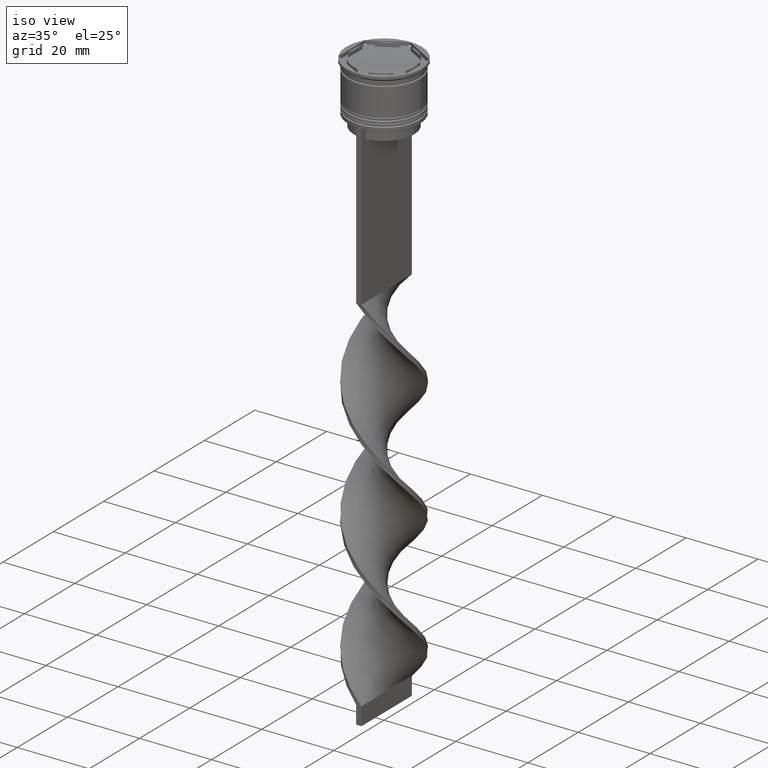
[diagram: clean part render]
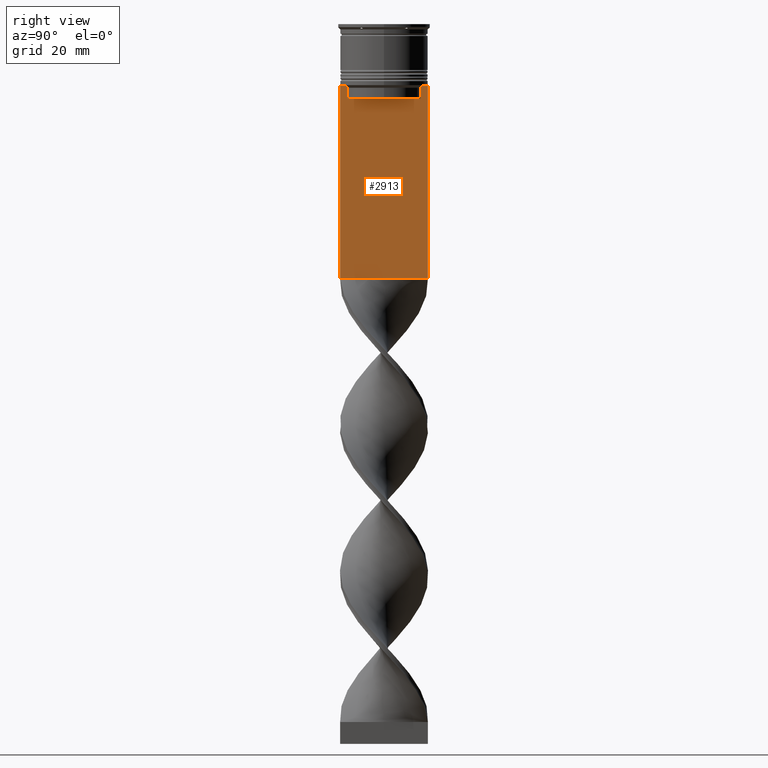
[diagram: tour spotlight — one face highlighted and labeled with its STEP entity id]
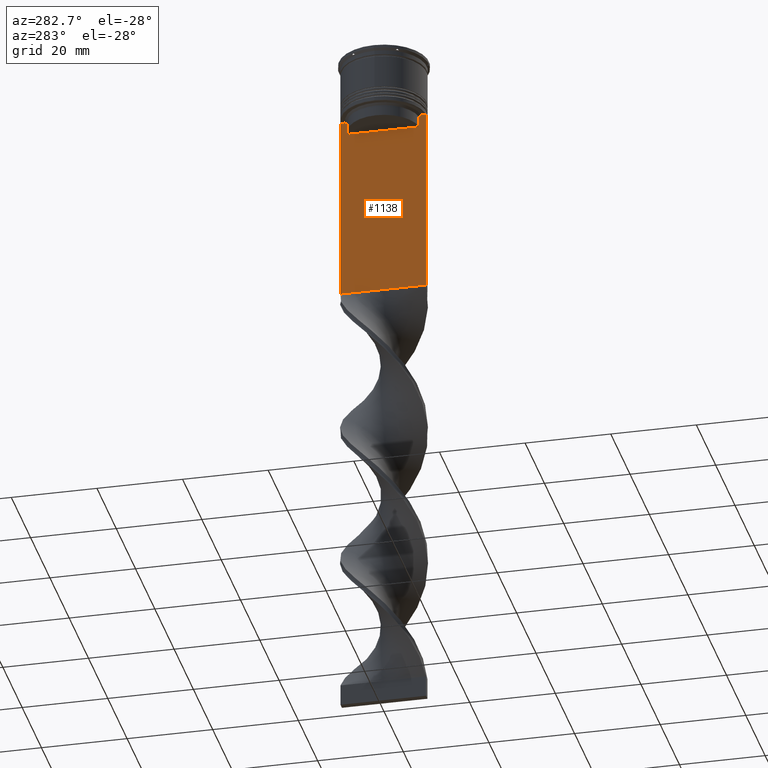
[diagram: tour spotlight — one face highlighted and labeled with its STEP entity id]
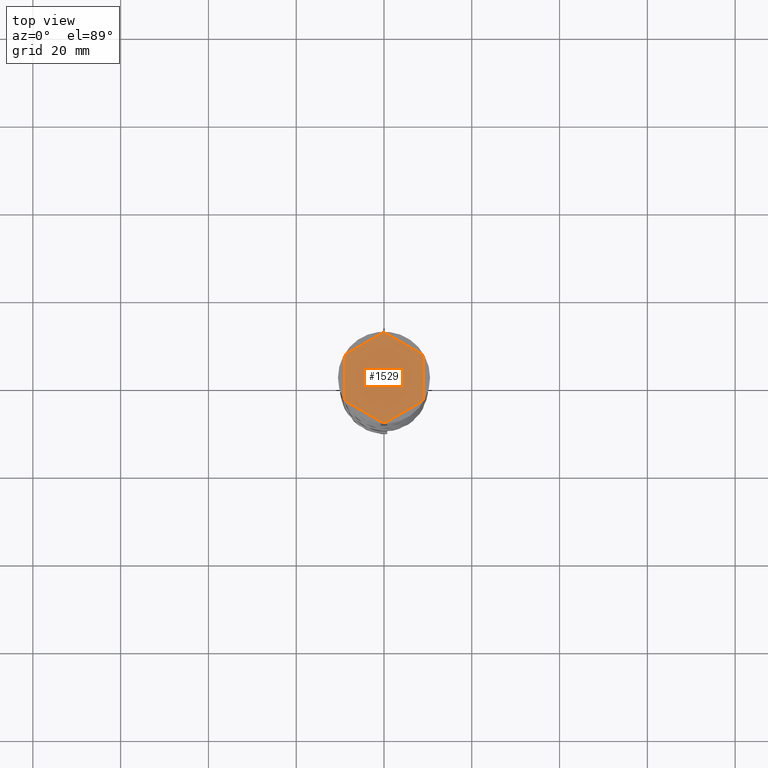
[diagram: tour spotlight — one face highlighted and labeled with its STEP entity id]
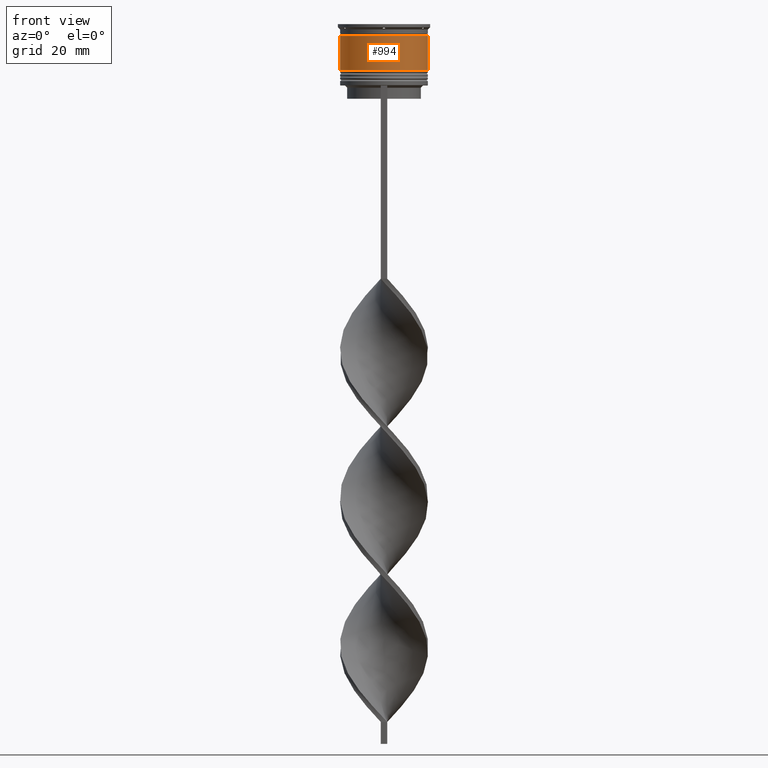
[diagram: tour spotlight — one face highlighted and labeled with its STEP entity id]
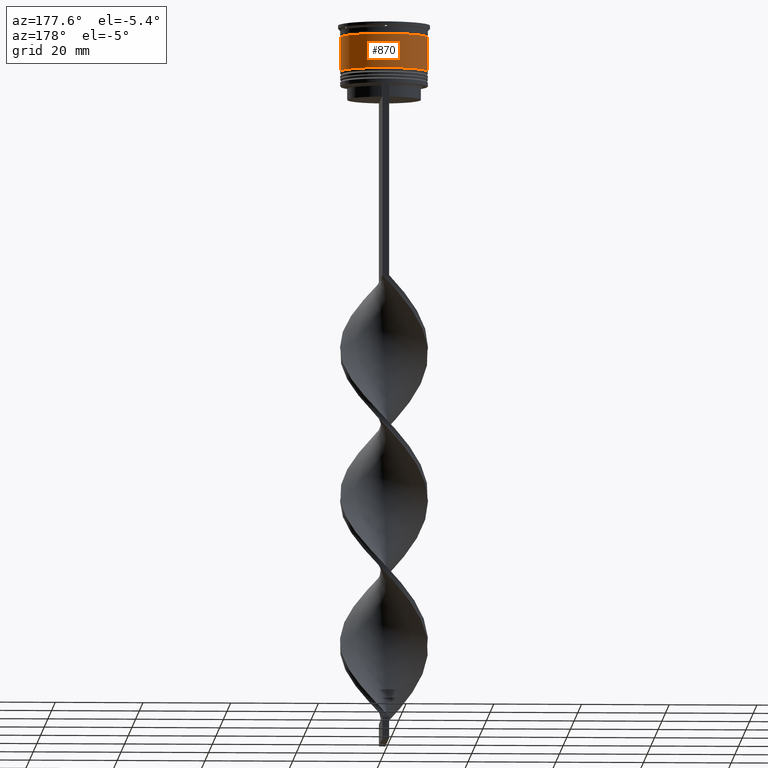
[diagram: tour spotlight — one face highlighted and labeled with its STEP entity id]
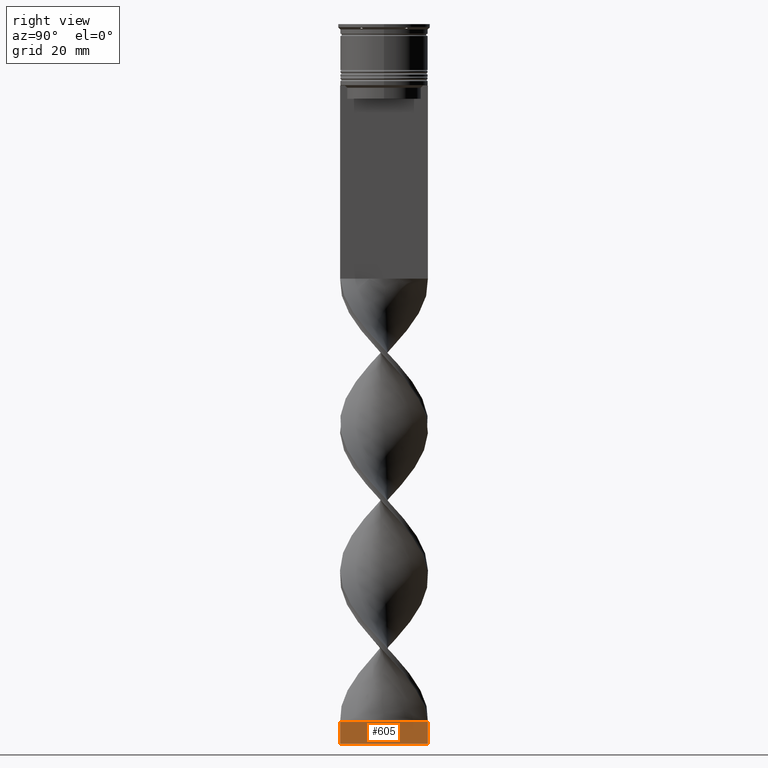
[diagram: tour spotlight — one face highlighted and labeled with its STEP entity id]
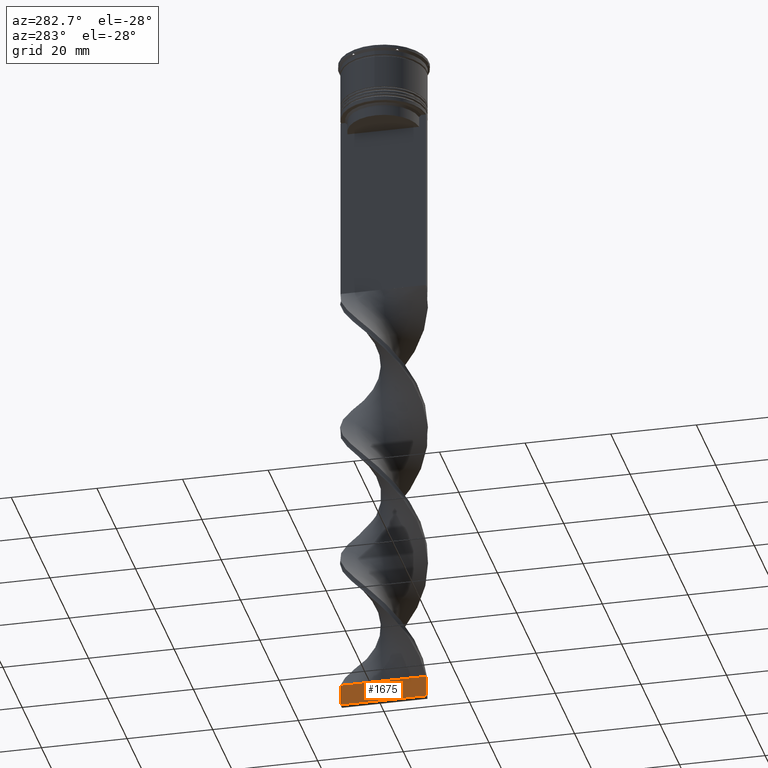
[diagram: tour spotlight — one face highlighted and labeled with its STEP entity id]
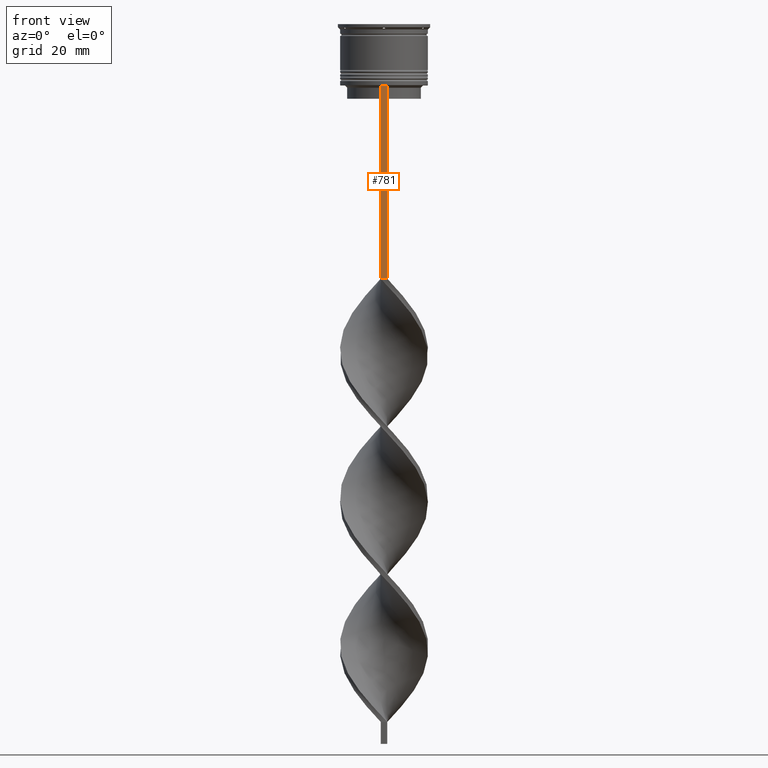
[diagram: tour spotlight — one face highlighted and labeled with its STEP entity id]
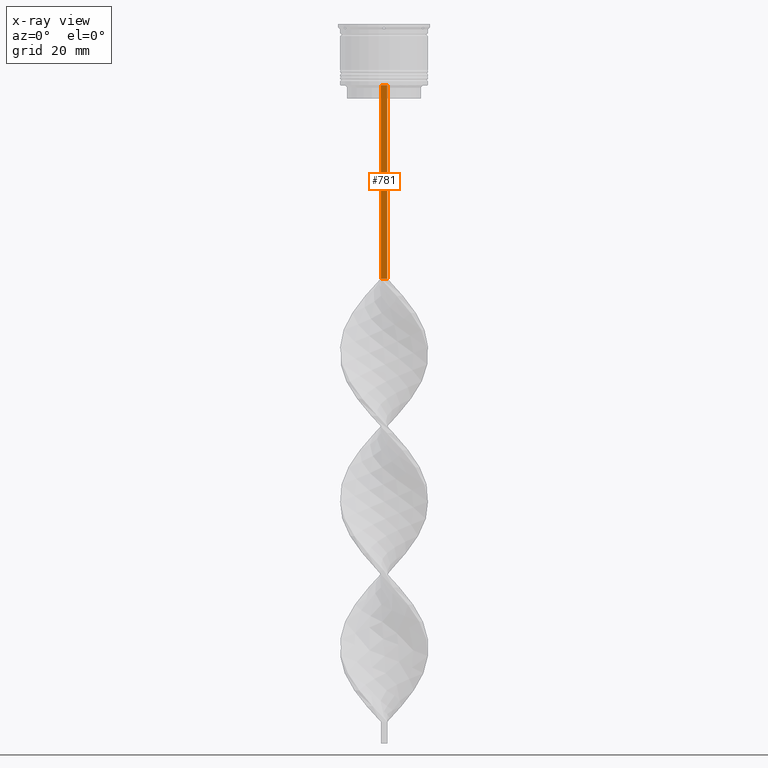
[diagram: x-ray of the same camera — body ghosted, this tour face saturated]
A machine part: a face-by-face anatomy tour. The part has 98 B-rep faces; the first image is the clean iso view, then the 8 largest visible faces are spotlighted one at a time (largest first), each with its STEP entity span.

Face 1 — right view, entity #2913. In plain terms, the highlighted planar face has unit normal (-1, 0, 0).
Definition (entity closure, byte-faithful):
#32 = CARTESIAN_POINT ( 'NONE',  ( 0.7500000000000001110, 9.999999999999998224, -14.00000000000000178 ) ) ;
#63 = CARTESIAN_POINT ( 'NONE',  ( 0.7500000000000001110, -8.366450860430608927, 0.000000000000000000 ) ) ;
#72 = CARTESIAN_POINT ( 'NONE',  ( 0.7500000000000001110, 8.400000000000003908, -17.00000000000000000 ) ) ;
#150 = EDGE_CURVE ( 'NONE', #1999, #1423, #1017, .T. ) ;
#162 = CARTESIAN_POINT ( 'NONE',  ( 0.7500000000000001110, -10.00000000000000533, -14.00000000000000178 ) ) ;
#163 = VERTEX_POINT ( 'NONE', #3101 ) ;
#190 = VECTOR ( 'NONE', #2822, 1000.000000000000000 ) ;
#202 = LINE ( 'NONE', #2617, #2774 ) ;
#221 = LINE ( 'NONE', #162, #3543 ) ;
#229 = ORIENTED_EDGE ( 'NONE', *, *, #723, .T. ) ;
#272 = EDGE_CURVE ( 'NONE', #3506, #1135, #996, .T. ) ;
#345 = LINE ( 'NONE', #72, #3857 ) ;
#364 = LINE ( 'NONE', #2656, #3152 ) ;
#396 = VERTEX_POINT ( 'NONE', #3171 ) ;
#431 = CARTESIAN_POINT ( 'NONE',  ( 0.7500000000000001110, -8.366450860430608927, -17.00000000000000000 ) ) ;
#482 = B_SPLINE_CURVE_WITH_KNOTS ( 'NONE', 3,
 ( #1077, #1393, #2907, #2291 ),
 .UNSPECIFIED., .F., .F.,
 ( 4, 4 ),
 ( 0.03866293624047253963, 0.03937282246709320616 ),
 .UNSPECIFIED. ) ;
#505 = PLANE ( 'NONE',  #1006 ) ;
#507 = VECTOR ( 'NONE', #3511, 1000.000000000000000 ) ;
#538 = VERTEX_POINT ( 'NONE', #431 ) ;
#540 = CARTESIAN_POINT ( 'NONE',  ( 0.7500000000000001110, -10.00000000000000533, 6.056171120131581098 ) ) ;
#564 = VERTEX_POINT ( 'NONE', #3548 ) ;
#582 = EDGE_CURVE ( 'NONE', #1857, #1046, #364, .T. ) ;
#636 = CARTESIAN_POINT ( 'NONE',  ( 0.7500000000000001110, -10.00000000000000533, 6.056171120131581098 ) ) ;
#641 = DIRECTION ( 'NONE',  ( 0.000000000000000000, 1.000000000000000000, 0.000000000000000000 ) ) ;
#696 = CARTESIAN_POINT ( 'NONE',  ( 0.7500000000000001110, -10.00000000000000533, -14.00000000000000178 ) ) ;
#723 = EDGE_CURVE ( 'NONE', #1815, #538, #345, .T. ) ;
#790 = CARTESIAN_POINT ( 'NONE',  ( 0.7500000000000001110, 8.533766897779925031, -14.33335221373273605 ) ) ;
#804 = ORIENTED_EDGE ( 'NONE', *, *, #150, .T. ) ;
#841 = ORIENTED_EDGE ( 'NONE', *, *, #272, .T. ) ;
#873 = VECTOR ( 'NONE', #1610, 1000.000000000000000 ) ;
#996 = LINE ( 'NONE', #696, #873 ) ;
#1000 = EDGE_CURVE ( 'NONE', #396, #163, #482, .T. ) ;
#1006 = AXIS2_PLACEMENT_3D ( 'NONE', #540, #1673, #3498 ) ;
#1017 = LINE ( 'NONE', #1348, #2838 ) ;
#1046 = VERTEX_POINT ( 'NONE', #3577 ) ;
#1050 = CARTESIAN_POINT ( 'NONE',  ( 0.7500000000000001110, 9.999999999999998224, 6.056171120131581098 ) ) ;
#1077 = CARTESIAN_POINT ( 'NONE',  ( 0.7500000000000001110, -8.366450860430608927, -14.50000000000000000 ) ) ;
#1135 = VERTEX_POINT ( 'NONE', #3640 ) ;
#1348 = CARTESIAN_POINT ( 'NONE',  ( 0.7500000000000001110, -10.00000000000000533, -14.00000000000000178 ) ) ;
#1393 = CARTESIAN_POINT ( 'NONE',  ( 0.7500000000000001110, -8.533766903463440912, -14.33335220807192023 ) ) ;
#1423 = VERTEX_POINT ( 'NONE', #2706 ) ;
#1431 = EDGE_CURVE ( 'NONE', #538, #396, #1905, .T. ) ;
#1433 = VECTOR ( 'NONE', #3653, 1000.000000000000000 ) ;
#1553 = DIRECTION ( 'NONE',  ( 0.000000000000000000, -1.000000000000000000, 0.000000000000000000 ) ) ;
#1567 = LINE ( 'NONE', #636, #190 ) ;
#1610 = DIRECTION ( 'NONE',  ( 0.000000000000000000, -1.000000000000000000, 0.000000000000000000 ) ) ;
#1630 = DIRECTION ( 'NONE',  ( 0.000000000000000000, -1.000000000000000000, 0.000000000000000000 ) ) ;
#1673 = DIRECTION ( 'NONE',  ( -1.000000000000000000, 0.000000000000000000, 0.000000000000000000 ) ) ;
#1799 = ORIENTED_EDGE ( 'NONE', *, *, #3569, .F. ) ;
#1815 = VERTEX_POINT ( 'NONE', #3137 ) ;
#1857 = VERTEX_POINT ( 'NONE', #2205 ) ;
#1905 = LINE ( 'NONE', #63, #1433 ) ;
#1973 = B_SPLINE_CURVE_WITH_KNOTS ( 'NONE', 3,
 ( #2922, #2580, #790, #2003 ),
 .UNSPECIFIED., .F., .F.,
 ( 4, 4 ),
 ( 0.01512225952876174867, 0.01583070519299695222 ),
 .UNSPECIFIED. ) ;
#1999 = VERTEX_POINT ( 'NONE', #32 ) ;
#2003 = CARTESIAN_POINT ( 'NONE',  ( 0.7500000000000001110, 8.366450860430608927, -14.50000000000000000 ) ) ;
#2205 = CARTESIAN_POINT ( 'NONE',  ( 0.7500000000000001110, -10.00000000000000533, -58.00000000000000000 ) ) ;
#2226 = ORIENTED_EDGE ( 'NONE', *, *, #3601, .T. ) ;
#2291 = CARTESIAN_POINT ( 'NONE',  ( 0.7500000000000001110, -8.868342573446296839, -14.00000000000000178 ) ) ;
#2319 = VERTEX_POINT ( 'NONE', #2919 ) ;
#2327 = EDGE_CURVE ( 'NONE', #2319, #1815, #202, .T. ) ;
#2330 = DIRECTION ( 'NONE',  ( 0.000000000000000000, -1.000000000000000000, 0.000000000000000000 ) ) ;
#2580 = CARTESIAN_POINT ( 'NONE',  ( 0.7500000000000001110, 8.701063075415250481, -14.16668448247791545 ) ) ;
#2617 = CARTESIAN_POINT ( 'NONE',  ( 0.7500000000000001110, 8.366450860430608927, 0.000000000000000000 ) ) ;
#2620 = CARTESIAN_POINT ( 'NONE',  ( 0.7500000000000001110, -9.871550030263739117, -14.00000000000000178 ) ) ;
#2656 = CARTESIAN_POINT ( 'NONE',  ( 0.7500000000000001110, -10.00000000000000533, -58.00000000000000000 ) ) ;
#2706 = CARTESIAN_POINT ( 'NONE',  ( 0.7500000000000001110, 9.871550030263739117, -14.00000000000000178 ) ) ;
#2734 = EDGE_CURVE ( 'NONE', #1423, #564, #3520, .T. ) ;
#2757 = ORIENTED_EDGE ( 'NONE', *, *, #3643, .T. ) ;
#2774 = VECTOR ( 'NONE', #3491, 1000.000000000000000 ) ;
#2794 = ORIENTED_EDGE ( 'NONE', *, *, #582, .T. ) ;
#2822 = DIRECTION ( 'NONE',  ( 0.000000000000000000, 0.000000000000000000, -1.000000000000000000 ) ) ;
#2838 = VECTOR ( 'NONE', #1630, 1000.000000000000000 ) ;
#2907 = CARTESIAN_POINT ( 'NONE',  ( 0.7500000000000001110, -8.701063080777121428, -14.16668447713511725 ) ) ;
#2913 = ADVANCED_FACE ( 'NONE', ( #3802 ), #505, .F. ) ;
#2919 = CARTESIAN_POINT ( 'NONE',  ( 0.7500000000000001110, 8.366450860430608927, -14.50000000000000000 ) ) ;
#2922 = CARTESIAN_POINT ( 'NONE',  ( 0.7500000000000001110, 8.868342573446296839, -14.00000000000000178 ) ) ;
#2951 = ORIENTED_EDGE ( 'NONE', *, *, #3310, .T. ) ;
#3101 = CARTESIAN_POINT ( 'NONE',  ( 0.7500000000000001110, -8.868342573446296839, -14.00000000000000178 ) ) ;
#3112 = ORIENTED_EDGE ( 'NONE', *, *, #2734, .T. ) ;
#3137 = CARTESIAN_POINT ( 'NONE',  ( 0.7500000000000001110, 8.366450860430608927, -17.00000000000000000 ) ) ;
#3148 = EDGE_LOOP ( 'NONE', ( #3112, #2226, #3779, #229, #3899, #3421, #2757, #841, #2951, #2794, #1799, #804 ) ) ;
#3152 = VECTOR ( 'NONE', #641, 1000.000000000000000 ) ;
#3171 = CARTESIAN_POINT ( 'NONE',  ( 0.7500000000000001110, -8.366450860430608927, -14.50000000000000000 ) ) ;
#3202 = CARTESIAN_POINT ( 'NONE',  ( 0.7500000000000001110, -10.00000000000000533, -14.00000000000000178 ) ) ;
#3310 = EDGE_CURVE ( 'NONE', #1135, #1857, #1567, .T. ) ;
#3421 = ORIENTED_EDGE ( 'NONE', *, *, #1000, .T. ) ;
#3491 = DIRECTION ( 'NONE',  ( 0.000000000000000000, 0.000000000000000000, -1.000000000000000000 ) ) ;
#3494 = LINE ( 'NONE', #1050, #507 ) ;
#3498 = DIRECTION ( 'NONE',  ( 0.000000000000000000, 0.000000000000000000, 1.000000000000000000 ) ) ;
#3506 = VERTEX_POINT ( 'NONE', #2620 ) ;
#3511 = DIRECTION ( 'NONE',  ( 0.000000000000000000, 0.000000000000000000, -1.000000000000000000 ) ) ;
#3520 = LINE ( 'NONE', #3202, #3923 ) ;
#3543 = VECTOR ( 'NONE', #3796, 1000.000000000000000 ) ;
#3548 = CARTESIAN_POINT ( 'NONE',  ( 0.7500000000000001110, 8.868342573446296839, -14.00000000000000178 ) ) ;
#3569 = EDGE_CURVE ( 'NONE', #1999, #1046, #3494, .T. ) ;
#3577 = CARTESIAN_POINT ( 'NONE',  ( 0.7500000000000002220, 9.999999999999998224, -58.00000000000000000 ) ) ;
#3601 = EDGE_CURVE ( 'NONE', #564, #2319, #1973, .T. ) ;
#3640 = CARTESIAN_POINT ( 'NONE',  ( 0.7500000000000001110, -10.00000000000000533, -14.00000000000000178 ) ) ;
#3643 = EDGE_CURVE ( 'NONE', #163, #3506, #221, .T. ) ;
#3653 = DIRECTION ( 'NONE',  ( -0.000000000000000000, -0.000000000000000000, 1.000000000000000000 ) ) ;
#3779 = ORIENTED_EDGE ( 'NONE', *, *, #2327, .T. ) ;
#3796 = DIRECTION ( 'NONE',  ( 0.000000000000000000, -1.000000000000000000, 0.000000000000000000 ) ) ;
#3802 = FACE_OUTER_BOUND ( 'NONE', #3148, .T. ) ;
#3857 = VECTOR ( 'NONE', #1553, 1000.000000000000000 ) ;
#3899 = ORIENTED_EDGE ( 'NONE', *, *, #1431, .T. ) ;
#3923 = VECTOR ( 'NONE', #2330, 1000.000000000000000 ) ;

Face 2 — auxiliary view, entity #1138. In plain terms, the highlighted planar face has unit normal (-1, 0, 0).
Definition (entity closure, byte-faithful):
#60 = VERTEX_POINT ( 'NONE', #613 ) ;
#101 = CARTESIAN_POINT ( 'NONE',  ( -0.7499999999999997780, -8.366450860430608927, -14.50000000000000000 ) ) ;
#118 = VECTOR ( 'NONE', #2211, 1000.000000000000000 ) ;
#131 = ORIENTED_EDGE ( 'NONE', *, *, #1632, .F. ) ;
#222 = EDGE_CURVE ( 'NONE', #3767, #865, #670, .T. ) ;
#243 = EDGE_CURVE ( 'NONE', #60, #3438, #458, .T. ) ;
#247 = CARTESIAN_POINT ( 'NONE',  ( -0.7499999999999997780, 9.999999999999998224, -14.00000000000000178 ) ) ;
#274 = EDGE_CURVE ( 'NONE', #3232, #1939, #1149, .T. ) ;
#290 = CARTESIAN_POINT ( 'NONE',  ( -0.7499999999999997780, 8.868342573446296839, -14.00000000000000178 ) ) ;
#303 = VECTOR ( 'NONE', #1134, 1000.000000000000000 ) ;
#371 = VECTOR ( 'NONE', #3419, 1000.000000000000000 ) ;
#398 = CARTESIAN_POINT ( 'NONE',  ( -0.7499999999999997780, 8.366450860430608927, -14.50000000000000000 ) ) ;
#458 = LINE ( 'NONE', #3162, #118 ) ;
#613 = CARTESIAN_POINT ( 'NONE',  ( -0.7499999999999997780, -9.871550030263740894, -14.00000000000000178 ) ) ;
#618 = CARTESIAN_POINT ( 'NONE',  ( -0.7499999999999997780, -10.00000000000000533, 6.056171120131581098 ) ) ;
#625 = ORIENTED_EDGE ( 'NONE', *, *, #3884, .F. ) ;
#628 = LINE ( 'NONE', #3055, #675 ) ;
#664 = DIRECTION ( 'NONE',  ( 0.000000000000000000, -1.000000000000000000, 0.000000000000000000 ) ) ;
#670 = LINE ( 'NONE', #2845, #2649 ) ;
#675 = VECTOR ( 'NONE', #664, 1000.000000000000000 ) ;
#711 = CARTESIAN_POINT ( 'NONE',  ( -0.7499999999999997780, -10.00000000000000533, -14.00000000000000178 ) ) ;
#838 = LINE ( 'NONE', #1056, #303 ) ;
#840 = CARTESIAN_POINT ( 'NONE',  ( -0.7499999999999997780, -8.366450860430608927, 0.000000000000000000 ) ) ;
#865 = VERTEX_POINT ( 'NONE', #2810 ) ;
#878 = EDGE_CURVE ( 'NONE', #1073, #3767, #3442, .T. ) ;
#1016 = LINE ( 'NONE', #3700, #371 ) ;
#1056 = CARTESIAN_POINT ( 'NONE',  ( -0.7499999999999997780, -10.00000000000000533, 6.056171120131581098 ) ) ;
#1073 = VERTEX_POINT ( 'NONE', #247 ) ;
#1134 = DIRECTION ( 'NONE',  ( 0.000000000000000000, 0.000000000000000000, -1.000000000000000000 ) ) ;
#1138 = ADVANCED_FACE ( 'NONE', ( #1489 ), #3303, .T. ) ;
#1149 = B_SPLINE_CURVE_WITH_KNOTS ( 'NONE', 3,
 ( #101, #1308, #2250, #3456 ),
 .UNSPECIFIED., .F., .F.,
 ( 4, 4 ),
 ( 0.03866293624047253963, 0.03937282246709321309 ),
 .UNSPECIFIED. ) ;
#1201 = CARTESIAN_POINT ( 'NONE',  ( -0.7499999999999997780, 8.366450860430608927, -14.50000000000000000 ) ) ;
#1258 = ORIENTED_EDGE ( 'NONE', *, *, #3402, .F. ) ;
#1284 = ORIENTED_EDGE ( 'NONE', *, *, #2770, .F. ) ;
#1303 = AXIS2_PLACEMENT_3D ( 'NONE', #618, #1809, #1849 ) ;
#1308 = CARTESIAN_POINT ( 'NONE',  ( -0.7499999999999997780, -8.533766903463440912, -14.33335220807192201 ) ) ;
#1489 = FACE_OUTER_BOUND ( 'NONE', #3386, .T. ) ;
#1504 = VERTEX_POINT ( 'NONE', #398 ) ;
#1537 = LINE ( 'NONE', #2056, #2011 ) ;
#1592 = B_SPLINE_CURVE_WITH_KNOTS ( 'NONE', 3,
 ( #290, #2717, #3926, #1201 ),
 .UNSPECIFIED., .F., .F.,
 ( 4, 4 ),
 ( 0.01512225952876174867, 0.01583070519299695222 ),
 .UNSPECIFIED. ) ;
#1632 = EDGE_CURVE ( 'NONE', #1939, #60, #628, .T. ) ;
#1640 = VECTOR ( 'NONE', #3486, 1000.000000000000000 ) ;
#1711 = ORIENTED_EDGE ( 'NONE', *, *, #2016, .F. ) ;
#1769 = CARTESIAN_POINT ( 'NONE',  ( -0.7499999999999997780, -8.366450860430608927, -14.50000000000000000 ) ) ;
#1809 = DIRECTION ( 'NONE',  ( -1.000000000000000000, 0.000000000000000000, 0.000000000000000000 ) ) ;
#1849 = DIRECTION ( 'NONE',  ( 0.000000000000000000, 0.000000000000000000, 1.000000000000000000 ) ) ;
#1939 = VERTEX_POINT ( 'NONE', #2538 ) ;
#1957 = VECTOR ( 'NONE', #2642, 1000.000000000000000 ) ;
#1975 = DIRECTION ( 'NONE',  ( 0.000000000000000000, -1.000000000000000000, 0.000000000000000000 ) ) ;
#1982 = VERTEX_POINT ( 'NONE', #2464 ) ;
#2011 = VECTOR ( 'NONE', #2268, 1000.000000000000000 ) ;
#2016 = EDGE_CURVE ( 'NONE', #2807, #1982, #1537, .T. ) ;
#2053 = ORIENTED_EDGE ( 'NONE', *, *, #222, .F. ) ;
#2056 = CARTESIAN_POINT ( 'NONE',  ( -0.7499999999999997780, -10.00000000000000533, -58.00000000000000000 ) ) ;
#2133 = CARTESIAN_POINT ( 'NONE',  ( -0.7499999999999998890, -10.00000000000000533, -58.00000000000000000 ) ) ;
#2147 = VECTOR ( 'NONE', #3262, 1000.000000000000000 ) ;
#2211 = DIRECTION ( 'NONE',  ( 0.000000000000000000, -1.000000000000000000, 0.000000000000000000 ) ) ;
#2217 = CARTESIAN_POINT ( 'NONE',  ( -0.7499999999999997780, -10.00000000000000533, -14.00000000000000178 ) ) ;
#2250 = CARTESIAN_POINT ( 'NONE',  ( -0.7499999999999997780, -8.701063080777123204, -14.16668447713511547 ) ) ;
#2255 = EDGE_CURVE ( 'NONE', #3438, #2807, #838, .T. ) ;
#2268 = DIRECTION ( 'NONE',  ( 0.000000000000000000, 1.000000000000000000, 0.000000000000000000 ) ) ;
#2293 = ORIENTED_EDGE ( 'NONE', *, *, #3058, .T. ) ;
#2352 = LINE ( 'NONE', #840, #2147 ) ;
#2464 = CARTESIAN_POINT ( 'NONE',  ( -0.7499999999999997780, 9.999999999999998224, -58.00000000000000000 ) ) ;
#2538 = CARTESIAN_POINT ( 'NONE',  ( -0.7499999999999997780, -8.868342573446296839, -14.00000000000000178 ) ) ;
#2611 = CARTESIAN_POINT ( 'NONE',  ( -0.7499999999999997780, 8.366450860430608927, 0.000000000000000000 ) ) ;
#2642 = DIRECTION ( 'NONE',  ( 0.000000000000000000, 0.000000000000000000, -1.000000000000000000 ) ) ;
#2649 = VECTOR ( 'NONE', #2823, 1000.000000000000000 ) ;
#2683 = ORIENTED_EDGE ( 'NONE', *, *, #878, .F. ) ;
#2697 = VERTEX_POINT ( 'NONE', #2862 ) ;
#2717 = CARTESIAN_POINT ( 'NONE',  ( -0.7499999999999997780, 8.701063075415252257, -14.16668448247791723 ) ) ;
#2744 = EDGE_CURVE ( 'NONE', #1504, #3636, #3542, .T. ) ;
#2770 = EDGE_CURVE ( 'NONE', #2697, #3232, #2352, .T. ) ;
#2807 = VERTEX_POINT ( 'NONE', #2133 ) ;
#2810 = CARTESIAN_POINT ( 'NONE',  ( -0.7499999999999997780, 8.868342573446296839, -14.00000000000000178 ) ) ;
#2823 = DIRECTION ( 'NONE',  ( 0.000000000000000000, -1.000000000000000000, 0.000000000000000000 ) ) ;
#2845 = CARTESIAN_POINT ( 'NONE',  ( -0.7499999999999997780, -10.00000000000000533, -14.00000000000000178 ) ) ;
#2862 = CARTESIAN_POINT ( 'NONE',  ( -0.7499999999999997780, -8.366450860430608927, -17.00000000000000000 ) ) ;
#2942 = LINE ( 'NONE', #3538, #1957 ) ;
#2945 = ORIENTED_EDGE ( 'NONE', *, *, #243, .F. ) ;
#3034 = ORIENTED_EDGE ( 'NONE', *, *, #2255, .F. ) ;
#3055 = CARTESIAN_POINT ( 'NONE',  ( -0.7499999999999997780, -10.00000000000000533, -14.00000000000000178 ) ) ;
#3058 = EDGE_CURVE ( 'NONE', #1073, #1982, #2942, .T. ) ;
#3162 = CARTESIAN_POINT ( 'NONE',  ( -0.7499999999999997780, -10.00000000000000533, -14.00000000000000178 ) ) ;
#3177 = CARTESIAN_POINT ( 'NONE',  ( -0.7499999999999997780, 8.366450860430608927, -17.00000000000000000 ) ) ;
#3232 = VERTEX_POINT ( 'NONE', #1769 ) ;
#3262 = DIRECTION ( 'NONE',  ( -0.000000000000000000, -0.000000000000000000, 1.000000000000000000 ) ) ;
#3303 = PLANE ( 'NONE',  #1303 ) ;
#3343 = VECTOR ( 'NONE', #1975, 1000.000000000000000 ) ;
#3356 = ORIENTED_EDGE ( 'NONE', *, *, #274, .F. ) ;
#3386 = EDGE_LOOP ( 'NONE', ( #625, #2053, #2683, #2293, #1711, #3034, #2945, #131, #3356, #1284, #1258, #3541 ) ) ;
#3402 = EDGE_CURVE ( 'NONE', #3636, #2697, #1016, .T. ) ;
#3419 = DIRECTION ( 'NONE',  ( 0.000000000000000000, -1.000000000000000000, 0.000000000000000000 ) ) ;
#3438 = VERTEX_POINT ( 'NONE', #711 ) ;
#3442 = LINE ( 'NONE', #2217, #3343 ) ;
#3456 = CARTESIAN_POINT ( 'NONE',  ( -0.7499999999999997780, -8.868342573446296839, -14.00000000000000178 ) ) ;
#3486 = DIRECTION ( 'NONE',  ( 0.000000000000000000, 0.000000000000000000, -1.000000000000000000 ) ) ;
#3538 = CARTESIAN_POINT ( 'NONE',  ( -0.7499999999999997780, 9.999999999999998224, 6.056171120131581098 ) ) ;
#3541 = ORIENTED_EDGE ( 'NONE', *, *, #2744, .F. ) ;
#3542 = LINE ( 'NONE', #2611, #1640 ) ;
#3636 = VERTEX_POINT ( 'NONE', #3177 ) ;
#3700 = CARTESIAN_POINT ( 'NONE',  ( -0.7499999999999997780, 8.400000000000003908, -17.00000000000000000 ) ) ;
#3767 = VERTEX_POINT ( 'NONE', #3885 ) ;
#3884 = EDGE_CURVE ( 'NONE', #865, #1504, #1592, .T. ) ;
#3885 = CARTESIAN_POINT ( 'NONE',  ( -0.7499999999999997780, 9.871550030263740894, -14.00000000000000178 ) ) ;
#3926 = CARTESIAN_POINT ( 'NONE',  ( -0.7499999999999997780, 8.533766897779926808, -14.33335221373273782 ) ) ;

Face 3 — top view, entity #1529. In plain terms, the highlighted planar face has unit normal (0, 0, 1).
Definition (entity closure, byte-faithful):
#4 = CARTESIAN_POINT ( 'NONE',  ( -9.000000000000001776, 4.799999999999988276, -1.000000000000000000 ) ) ;
#5 = EDGE_CURVE ( 'NONE', #656, #3254, #1584, .T. ) ;
#19 = DIRECTION ( 'NONE',  ( 1.000000000000000000, 0.000000000000000000, 0.000000000000000000 ) ) ;
#23 = ORIENTED_EDGE ( 'NONE', *, *, #1453, .F. ) ;
#67 = DIRECTION ( 'NONE',  ( -0.000000000000000000, -0.000000000000000000, -1.000000000000000000 ) ) ;
#99 = FACE_BOUND ( 'NONE', #365, .T. ) ;
#114 = VECTOR ( 'NONE', #2926, 1000.000000000000000 ) ;
#142 = DIRECTION ( 'NONE',  ( 1.000000000000000000, 8.881784197001252323E-16, 0.000000000000000000 ) ) ;
#156 = ORIENTED_EDGE ( 'NONE', *, *, #3646, .T. ) ;
#167 = LINE ( 'NONE', #1351, #556 ) ;
#174 = AXIS2_PLACEMENT_3D ( 'NONE', #1574, #1594, #3365 ) ;
#207 = EDGE_CURVE ( 'NONE', #3200, #768, #2329, .T. ) ;
#223 = VERTEX_POINT ( 'NONE', #3399 ) ;
#248 = LINE ( 'NONE', #1715, #114 ) ;
#249 = VERTEX_POINT ( 'NONE', #2266 ) ;
#281 = ORIENTED_EDGE ( 'NONE', *, *, #207, .F. ) ;
#297 = CARTESIAN_POINT ( 'NONE',  ( -8.673617379884035472E-16, -9.237604307034013473, -1.000000000000000888 ) ) ;
#298 = VERTEX_POINT ( 'NONE', #3799 ) ;
#312 = ORIENTED_EDGE ( 'NONE', *, *, #1796, .F. ) ;
#359 = VECTOR ( 'NONE', #3821, 1000.000000000000000 ) ;
#365 = EDGE_LOOP ( 'NONE', ( #1772, #2535 ) ) ;
#376 = EDGE_LOOP ( 'NONE', ( #3554, #1277 ) ) ;
#388 = LINE ( 'NONE', #2272, #2712 ) ;
#389 = ORIENTED_EDGE ( 'NONE', *, *, #3124, .T. ) ;
#420 = AXIS2_PLACEMENT_3D ( 'NONE', #2008, #2072, #506 ) ;
#422 = VERTEX_POINT ( 'NONE', #3766 ) ;
#428 = CIRCLE ( 'NONE', #3159, 8.500000000000000000 ) ;
#437 = AXIS2_PLACEMENT_3D ( 'NONE', #2102, #1159, #2397 ) ;
#465 = EDGE_CURVE ( 'NONE', #3254, #656, #2270, .T. ) ;
#479 = CARTESIAN_POINT ( 'NONE',  ( 8.000000000000000000, 2.872281323269014752, -1.000000000000000888 ) ) ;
#501 = CIRCLE ( 'NONE', #3536, 10.19999999999999574 ) ;
#506 = DIRECTION ( 'NONE',  ( 1.000000000000000000, 0.000000000000000000, 0.000000000000000000 ) ) ;
#525 = LINE ( 'NONE', #2006, #1445 ) ;
#556 = VECTOR ( 'NONE', #1315, 1000.000000000000114 ) ;
#656 = VERTEX_POINT ( 'NONE', #3385 ) ;
#671 = VERTEX_POINT ( 'NONE', #3705 ) ;
#694 = CARTESIAN_POINT ( 'NONE',  ( 8.000000000000000000, -2.872281323269017417, -1.000000000000000888 ) ) ;
#727 = VERTEX_POINT ( 'NONE', #2677 ) ;
#768 = VERTEX_POINT ( 'NONE', #3777 ) ;
#773 = CARTESIAN_POINT ( 'NONE',  ( 9.000000000000001776, 5.196152422706632912, -1.000000000000000000 ) ) ;
#776 = EDGE_CURVE ( 'NONE', #3600, #223, #167, .T. ) ;
#803 = DIRECTION ( 'NONE',  ( 1.000000000000000000, 0.000000000000000000, 0.000000000000000000 ) ) ;
#813 = VERTEX_POINT ( 'NONE', #2546 ) ;
#823 = EDGE_LOOP ( 'NONE', ( #1194, #3887 ) ) ;
#846 = EDGE_CURVE ( 'NONE', #422, #813, #388, .T. ) ;
#881 = AXIS2_PLACEMENT_3D ( 'NONE', #1306, #3737, #3756 ) ;
#896 = DIRECTION ( 'NONE',  ( 1.000000000000000000, 0.000000000000000000, 0.000000000000000000 ) ) ;
#897 = CARTESIAN_POINT ( 'NONE',  ( -0.3430780618347059052, 10.19422863405994306, -1.000000000000000000 ) ) ;
#950 = EDGE_CURVE ( 'NONE', #990, #1497, #3500, .T. ) ;
#958 = FACE_OUTER_BOUND ( 'NONE', #1018, .T. ) ;
#990 = VERTEX_POINT ( 'NONE', #479 ) ;
#995 = CARTESIAN_POINT ( 'NONE',  ( 0.000000000000000000, 0.000000000000000000, -1.000000000000000000 ) ) ;
#998 = AXIS2_PLACEMENT_3D ( 'NONE', #2760, #3713, #19 ) ;
#1001 = CARTESIAN_POINT ( 'NONE',  ( 8.656921938165297092, -5.394228634059953009, -1.000000000000000000 ) ) ;
#1004 = VERTEX_POINT ( 'NONE', #1714 ) ;
#1007 = VECTOR ( 'NONE', #1512, 1000.000000000000000 ) ;
#1015 = DIRECTION ( 'NONE',  ( 0.000000000000000000, 0.000000000000000000, 1.000000000000000000 ) ) ;
#1018 = EDGE_LOOP ( 'NONE', ( #1115, #23, #156, #2824, #3811, #281, #1270, #3044, #2022, #3427, #389, #1616 ) ) ;
#1023 = DIRECTION ( 'NONE',  ( 0.8660254037844387076, -0.4999999999999997224, 0.000000000000000000 ) ) ;
#1035 = CARTESIAN_POINT ( 'NONE',  ( 8.656921938165297092, 5.394228634059953897, -1.000000000000000000 ) ) ;
#1041 = EDGE_CURVE ( 'NONE', #1497, #990, #2653, .T. ) ;
#1054 = CIRCLE ( 'NONE', #2575, 10.19999999999999574 ) ;
#1067 = EDGE_CURVE ( 'NONE', #1977, #249, #2450, .T. ) ;
#1072 = LINE ( 'NONE', #773, #1129 ) ;
#1115 = ORIENTED_EDGE ( 'NONE', *, *, #2214, .T. ) ;
#1129 = VECTOR ( 'NONE', #1687, 1000.000000000000227 ) ;
#1159 = DIRECTION ( 'NONE',  ( -0.000000000000000000, -0.000000000000000000, -1.000000000000000000 ) ) ;
#1170 = LINE ( 'NONE', #2365, #1007 ) ;
#1194 = ORIENTED_EDGE ( 'NONE', *, *, #1067, .F. ) ;
#1195 = EDGE_CURVE ( 'NONE', #422, #2097, #1054, .T. ) ;
#1196 = CIRCLE ( 'NONE', #881, 8.500000000000000000 ) ;
#1200 = VERTEX_POINT ( 'NONE', #897 ) ;
#1234 = VERTEX_POINT ( 'NONE', #3064 ) ;
#1244 = CIRCLE ( 'NONE', #174, 8.500000000000000000 ) ;
#1245 = VECTOR ( 'NONE', #2166, 1000.000000000000114 ) ;
#1246 = CARTESIAN_POINT ( 'NONE',  ( 6.487468592766552078, 5.492062568641001619, -1.000000000000000888 ) ) ;
#1256 = CARTESIAN_POINT ( 'NONE',  ( 0.000000000000000000, 0.000000000000000000, -1.000000000000000000 ) ) ;
#1268 = FACE_BOUND ( 'NONE', #3070, .T. ) ;
#1270 = ORIENTED_EDGE ( 'NONE', *, *, #3021, .T. ) ;
#1274 = CARTESIAN_POINT ( 'NONE',  ( -8.000000000000000000, 2.872281323269016085, -1.000000000000000888 ) ) ;
#1275 = DIRECTION ( 'NONE',  ( 0.000000000000000000, 0.000000000000000000, 1.000000000000000000 ) ) ;
#1277 = ORIENTED_EDGE ( 'NONE', *, *, #2503, .F. ) ;
#1306 = CARTESIAN_POINT ( 'NONE',  ( 0.000000000000000000, 0.000000000000000000, -1.000000000000000000 ) ) ;
#1315 = DIRECTION ( 'NONE',  ( 0.8660254037844384856, 0.5000000000000003331, -0.000000000000000000 ) ) ;
#1321 = VECTOR ( 'NONE', #2694, 1000.000000000000114 ) ;
#1324 = CIRCLE ( 'NONE', #437, 10.19999999999999574 ) ;
#1335 = ORIENTED_EDGE ( 'NONE', *, *, #950, .F. ) ;
#1345 = CARTESIAN_POINT ( 'NONE',  ( -1.512531407233448366, -8.364343891910017703, -1.000000000000000888 ) ) ;
#1351 = CARTESIAN_POINT ( 'NONE',  ( 8.673617379884035472E-16, 9.237604307034013473, -1.000000000000000888 ) ) ;
#1426 = DIRECTION ( 'NONE',  ( 0.000000000000000000, -1.000000000000000000, 0.000000000000000000 ) ) ;
#1440 = AXIS2_PLACEMENT_3D ( 'NONE', #2306, #2925, #1450 ) ;
#1445 = VECTOR ( 'NONE', #1426, 1000.000000000000000 ) ;
#1450 = DIRECTION ( 'NONE',  ( 1.000000000000000000, 0.000000000000000000, 0.000000000000000000 ) ) ;
#1453 = EDGE_CURVE ( 'NONE', #3392, #298, #3344, .T. ) ;
#1477 = CARTESIAN_POINT ( 'NONE',  ( 8.000000000000000000, 4.618802153517006737, -1.000000000000000888 ) ) ;
#1496 = AXIS2_PLACEMENT_3D ( 'NONE', #3396, #1015, #2785 ) ;
#1497 = VERTEX_POINT ( 'NONE', #694 ) ;
#1512 = DIRECTION ( 'NONE',  ( 0.8660254037844385966, 0.5000000000000001110, 0.000000000000000000 ) ) ;
#1529 = ADVANCED_FACE ( 'NONE', ( #3699, #1268, #1607, #3133, #3682, #99, #958 ), #3736, .T. ) ;
#1570 = ORIENTED_EDGE ( 'NONE', *, *, #3397, .F. ) ;
#1574 = CARTESIAN_POINT ( 'NONE',  ( 0.000000000000000000, 0.000000000000000000, -1.000000000000000000 ) ) ;
#1584 = LINE ( 'NONE', #297, #1245 ) ;
#1587 = LINE ( 'NONE', #3115, #3222 ) ;
#1594 = DIRECTION ( 'NONE',  ( 0.000000000000000000, 0.000000000000000000, 1.000000000000000000 ) ) ;
#1607 = FACE_BOUND ( 'NONE', #3679, .T. ) ;
#1616 = ORIENTED_EDGE ( 'NONE', *, *, #2676, .F. ) ;
#1687 = DIRECTION ( 'NONE',  ( -0.8660254037844385966, 0.5000000000000000000, 0.000000000000000000 ) ) ;
#1714 = CARTESIAN_POINT ( 'NONE',  ( 0.3430780618347050170, 10.19422863405994306, -1.000000000000000000 ) ) ;
#1715 = CARTESIAN_POINT ( 'NONE',  ( 9.000000000000001776, -5.196152422706632024, -1.000000000000000000 ) ) ;
#1752 = VERTEX_POINT ( 'NONE', #1274 ) ;
#1772 = ORIENTED_EDGE ( 'NONE', *, *, #3203, .F. ) ;
#1796 = EDGE_CURVE ( 'NONE', #1234, #3477, #1244, .T. ) ;
#1867 = DIRECTION ( 'NONE',  ( -0.000000000000000000, -0.000000000000000000, -1.000000000000000000 ) ) ;
#1924 = DIRECTION ( 'NONE',  ( 1.000000000000000000, 0.000000000000000000, 0.000000000000000000 ) ) ;
#1926 = CARTESIAN_POINT ( 'NONE',  ( 9.000000000000001776, -4.799999999999988276, -1.000000000000000000 ) ) ;
#1971 = CARTESIAN_POINT ( 'NONE',  ( -9.000000000000001776, -4.799999999999988276, -1.000000000000000000 ) ) ;
#1977 = VERTEX_POINT ( 'NONE', #1246 ) ;
#1992 = CARTESIAN_POINT ( 'NONE',  ( 7.999999999999998224, -4.618802153517008513, -1.000000000000000888 ) ) ;
#2006 = CARTESIAN_POINT ( 'NONE',  ( -9.000000000000001776, 5.196152422706632024, -1.000000000000000000 ) ) ;
#2008 = CARTESIAN_POINT ( 'NONE',  ( 0.000000000000000000, 0.000000000000000000, -1.000000000000000000 ) ) ;
#2022 = ORIENTED_EDGE ( 'NONE', *, *, #846, .T. ) ;
#2030 = ORIENTED_EDGE ( 'NONE', *, *, #2892, .F. ) ;
#2039 = DIRECTION ( 'NONE',  ( 0.000000000000000000, 0.000000000000000000, 1.000000000000000000 ) ) ;
#2071 = DIRECTION ( 'NONE',  ( 0.000000000000000000, 0.000000000000000000, 1.000000000000000000 ) ) ;
#2072 = DIRECTION ( 'NONE',  ( 0.000000000000000000, 0.000000000000000000, 1.000000000000000000 ) ) ;
#2089 = VECTOR ( 'NONE', #3378, 1000.000000000000000 ) ;
#2097 = VERTEX_POINT ( 'NONE', #1971 ) ;
#2102 = CARTESIAN_POINT ( 'NONE',  ( 0.000000000000000000, 0.000000000000000000, -1.000000000000000000 ) ) ;
#2130 = CARTESIAN_POINT ( 'NONE',  ( 0.000000000000000000, 0.000000000000000000, -1.000000000000000000 ) ) ;
#2166 = DIRECTION ( 'NONE',  ( -0.8660254037844387076, -0.4999999999999998335, 0.000000000000000000 ) ) ;
#2170 = CARTESIAN_POINT ( 'NONE',  ( -8.000000000000000000, 4.618802153517004072, -1.000000000000000888 ) ) ;
#2189 = CARTESIAN_POINT ( 'NONE',  ( 0.000000000000000000, 0.000000000000000000, -1.000000000000000000 ) ) ;
#2214 = EDGE_CURVE ( 'NONE', #2530, #298, #248, .T. ) ;
#2229 = DIRECTION ( 'NONE',  ( -0.8660254037844385966, -0.5000000000000001110, 0.000000000000000000 ) ) ;
#2266 = CARTESIAN_POINT ( 'NONE',  ( 1.512531407233448366, 8.364343891910017703, -1.000000000000000888 ) ) ;
#2270 = CIRCLE ( 'NONE', #2844, 8.500000000000000000 ) ;
#2272 = CARTESIAN_POINT ( 'NONE',  ( -9.000000000000001776, -5.196152422706632912, -1.000000000000000000 ) ) ;
#2280 = CARTESIAN_POINT ( 'NONE',  ( 0.000000000000000000, 0.000000000000000000, -1.000000000000000000 ) ) ;
#2306 = CARTESIAN_POINT ( 'NONE',  ( 0.000000000000000000, 0.000000000000000000, -1.000000000000000000 ) ) ;
#2329 = CIRCLE ( 'NONE', #2333, 10.19999999999999574 ) ;
#2333 = AXIS2_PLACEMENT_3D ( 'NONE', #2189, #67, #1924 ) ;
#2335 = AXIS2_PLACEMENT_3D ( 'NONE', #2745, #2071, #896 ) ;
#2365 = CARTESIAN_POINT ( 'NONE',  ( 2.607697573705103160E-15, -10.39230484541326405, -1.000000000000000000 ) ) ;
#2397 = DIRECTION ( 'NONE',  ( 1.000000000000000000, 1.598721155460225418E-14, 0.000000000000000000 ) ) ;
#2399 = EDGE_LOOP ( 'NONE', ( #2030, #1570, #312 ) ) ;
#2401 = VECTOR ( 'NONE', #2866, 1000.000000000000114 ) ;
#2413 = DIRECTION ( 'NONE',  ( -0.000000000000000000, -0.000000000000000000, -1.000000000000000000 ) ) ;
#2434 = EDGE_CURVE ( 'NONE', #1200, #768, #1587, .T. ) ;
#2450 = CIRCLE ( 'NONE', #420, 8.500000000000000000 ) ;
#2465 = CIRCLE ( 'NONE', #2335, 8.500000000000000000 ) ;
#2503 = EDGE_CURVE ( 'NONE', #2678, #671, #2764, .T. ) ;
#2530 = VERTEX_POINT ( 'NONE', #1926 ) ;
#2535 = ORIENTED_EDGE ( 'NONE', *, *, #776, .F. ) ;
#2546 = CARTESIAN_POINT ( 'NONE',  ( -0.3430780618347024080, -10.19422863405994306, -1.000000000000000000 ) ) ;
#2563 = CARTESIAN_POINT ( 'NONE',  ( -8.000000000000000000, -4.618802153517006737, -1.000000000000000888 ) ) ;
#2575 = AXIS2_PLACEMENT_3D ( 'NONE', #2130, #2413, #3623 ) ;
#2593 = CIRCLE ( 'NONE', #3098, 10.19999999999999574 ) ;
#2610 = ORIENTED_EDGE ( 'NONE', *, *, #465, .F. ) ;
#2630 = LINE ( 'NONE', #1477, #1321 ) ;
#2653 = CIRCLE ( 'NONE', #1440, 8.500000000000000000 ) ;
#2676 = EDGE_CURVE ( 'NONE', #2530, #2835, #501, .T. ) ;
#2677 = CARTESIAN_POINT ( 'NONE',  ( 0.3430780618347059052, -10.19422863405994306, -1.000000000000000000 ) ) ;
#2678 = VERTEX_POINT ( 'NONE', #1345 ) ;
#2694 = DIRECTION ( 'NONE',  ( 0.8660254037844385966, -0.4999999999999999445, 0.000000000000000000 ) ) ;
#2712 = VECTOR ( 'NONE', #1023, 1000.000000000000114 ) ;
#2745 = CARTESIAN_POINT ( 'NONE',  ( 0.000000000000000000, 0.000000000000000000, -1.000000000000000000 ) ) ;
#2760 = CARTESIAN_POINT ( 'NONE',  ( 0.000000000000000000, 0.000000000000000000, -1.000000000000000000 ) ) ;
#2764 = LINE ( 'NONE', #2563, #2401 ) ;
#2785 = DIRECTION ( 'NONE',  ( 1.000000000000000000, 0.000000000000000000, -0.000000000000000000 ) ) ;
#2824 = ORIENTED_EDGE ( 'NONE', *, *, #3839, .F. ) ;
#2835 = VERTEX_POINT ( 'NONE', #1001 ) ;
#2844 = AXIS2_PLACEMENT_3D ( 'NONE', #2280, #2039, #803 ) ;
#2866 = DIRECTION ( 'NONE',  ( -0.8660254037844385966, 0.4999999999999999445, 0.000000000000000000 ) ) ;
#2892 = EDGE_CURVE ( 'NONE', #1752, #1234, #428, .T. ) ;
#2898 = DIRECTION ( 'NONE',  ( -0.000000000000000000, -0.000000000000000000, -1.000000000000000000 ) ) ;
#2925 = DIRECTION ( 'NONE',  ( 0.000000000000000000, 0.000000000000000000, 1.000000000000000000 ) ) ;
#2926 = DIRECTION ( 'NONE',  ( 0.000000000000000000, 1.000000000000000000, 0.000000000000000000 ) ) ;
#2987 = CARTESIAN_POINT ( 'NONE',  ( 1.512531407233452363, -8.364343891910017703, -1.000000000000000888 ) ) ;
#3021 = EDGE_CURVE ( 'NONE', #3200, #2097, #525, .T. ) ;
#3044 = ORIENTED_EDGE ( 'NONE', *, *, #1195, .F. ) ;
#3064 = CARTESIAN_POINT ( 'NONE',  ( -8.500000000000000000, 0.000000000000000000, -1.000000000000000000 ) ) ;
#3070 = EDGE_LOOP ( 'NONE', ( #3293, #1335 ) ) ;
#3079 = DIRECTION ( 'NONE',  ( 1.000000000000000000, 0.000000000000000000, 0.000000000000000000 ) ) ;
#3098 = AXIS2_PLACEMENT_3D ( 'NONE', #995, #1867, #3079 ) ;
#3105 = DIRECTION ( 'NONE',  ( 1.000000000000000000, 0.000000000000000000, 0.000000000000000000 ) ) ;
#3115 = CARTESIAN_POINT ( 'NONE',  ( 0.000000000000000000, 10.39230484541326582, -1.000000000000000000 ) ) ;
#3117 = CARTESIAN_POINT ( 'NONE',  ( -8.000000000000000000, -2.872281323269016085, -1.000000000000000888 ) ) ;
#3124 = EDGE_CURVE ( 'NONE', #727, #2835, #1170, .T. ) ;
#3133 = FACE_BOUND ( 'NONE', #376, .T. ) ;
#3159 = AXIS2_PLACEMENT_3D ( 'NONE', #1256, #1275, #3105 ) ;
#3176 = CARTESIAN_POINT ( 'NONE',  ( 0.000000000000000000, 0.000000000000000000, -1.000000000000000000 ) ) ;
#3194 = CARTESIAN_POINT ( 'NONE',  ( -6.487468592766553854, 5.492062568640999842, -1.000000000000000888 ) ) ;
#3200 = VERTEX_POINT ( 'NONE', #4 ) ;
#3203 = EDGE_CURVE ( 'NONE', #223, #3600, #2465, .T. ) ;
#3222 = VECTOR ( 'NONE', #2229, 1000.000000000000000 ) ;
#3254 = VERTEX_POINT ( 'NONE', #2987 ) ;
#3293 = ORIENTED_EDGE ( 'NONE', *, *, #1041, .F. ) ;
#3344 = CIRCLE ( 'NONE', #998, 10.19999999999999574 ) ;
#3352 = EDGE_CURVE ( 'NONE', #671, #2678, #1196, .T. ) ;
#3365 = DIRECTION ( 'NONE',  ( 1.000000000000000000, 0.000000000000000000, 0.000000000000000000 ) ) ;
#3378 = DIRECTION ( 'NONE',  ( 0.000000000000000000, 1.000000000000000000, 0.000000000000000000 ) ) ;
#3385 = CARTESIAN_POINT ( 'NONE',  ( 6.487468592766547637, -5.492062568641006060, -1.000000000000000888 ) ) ;
#3392 = VERTEX_POINT ( 'NONE', #1035 ) ;
#3396 = CARTESIAN_POINT ( 'NONE',  ( 0.000000000000000000, 0.000000000000000000, -1.000000000000000000 ) ) ;
#3397 = EDGE_CURVE ( 'NONE', #3477, #1752, #3714, .T. ) ;
#3399 = CARTESIAN_POINT ( 'NONE',  ( -1.512531407233451475, 8.364343891910017703, -1.000000000000000888 ) ) ;
#3427 = ORIENTED_EDGE ( 'NONE', *, *, #3428, .F. ) ;
#3428 = EDGE_CURVE ( 'NONE', #727, #813, #2593, .T. ) ;
#3477 = VERTEX_POINT ( 'NONE', #3117 ) ;
#3500 = LINE ( 'NONE', #1992, #359 ) ;
#3536 = AXIS2_PLACEMENT_3D ( 'NONE', #3176, #2898, #142 ) ;
#3554 = ORIENTED_EDGE ( 'NONE', *, *, #3352, .F. ) ;
#3600 = VERTEX_POINT ( 'NONE', #3194 ) ;
#3623 = DIRECTION ( 'NONE',  ( 1.000000000000000000, 0.000000000000000000, 0.000000000000000000 ) ) ;
#3646 = EDGE_CURVE ( 'NONE', #3392, #1004, #1072, .T. ) ;
#3679 = EDGE_LOOP ( 'NONE', ( #2610, #3883 ) ) ;
#3682 = FACE_BOUND ( 'NONE', #2399, .T. ) ;
#3699 = FACE_BOUND ( 'NONE', #823, .T. ) ;
#3705 = CARTESIAN_POINT ( 'NONE',  ( -6.487468592766552078, -5.492062568641001619, -1.000000000000000888 ) ) ;
#3713 = DIRECTION ( 'NONE',  ( -0.000000000000000000, -0.000000000000000000, -1.000000000000000000 ) ) ;
#3714 = LINE ( 'NONE', #2170, #2089 ) ;
#3736 = PLANE ( 'NONE',  #1496 ) ;
#3737 = DIRECTION ( 'NONE',  ( 0.000000000000000000, 0.000000000000000000, 1.000000000000000000 ) ) ;
#3756 = DIRECTION ( 'NONE',  ( 1.000000000000000000, 0.000000000000000000, 0.000000000000000000 ) ) ;
#3766 = CARTESIAN_POINT ( 'NONE',  ( -8.656921938165295316, -5.394228634059957450, -1.000000000000000000 ) ) ;
#3777 = CARTESIAN_POINT ( 'NONE',  ( -8.656921938165297092, 5.394228634059953009, -1.000000000000000000 ) ) ;
#3799 = CARTESIAN_POINT ( 'NONE',  ( 9.000000000000001776, 4.799999999999988276, -1.000000000000000000 ) ) ;
#3811 = ORIENTED_EDGE ( 'NONE', *, *, #2434, .T. ) ;
#3818 = EDGE_CURVE ( 'NONE', #249, #1977, #2630, .T. ) ;
#3821 = DIRECTION ( 'NONE',  ( -1.877893248421449036E-16, -1.000000000000000000, 0.000000000000000000 ) ) ;
#3839 = EDGE_CURVE ( 'NONE', #1200, #1004, #1324, .T. ) ;
#3883 = ORIENTED_EDGE ( 'NONE', *, *, #5, .F. ) ;
#3887 = ORIENTED_EDGE ( 'NONE', *, *, #3818, .F. ) ;

Face 4 — front view, entity #994. In plain terms, the highlighted cylindrical surface (partial cylindrical patch) has radius 10 mm, axis along (-0, -0, 1).
Definition (entity closure, byte-faithful):
#192 = DIRECTION ( 'NONE',  ( -0.000000000000000000, -0.000000000000000000, 1.000000000000000000 ) ) ;
#246 = LINE ( 'NONE', #2665, #1113 ) ;
#266 = DIRECTION ( 'NONE',  ( 1.000000000000000000, 0.000000000000000000, 0.000000000000000000 ) ) ;
#367 = EDGE_CURVE ( 'NONE', #3066, #453, #3126, .T. ) ;
#453 = VERTEX_POINT ( 'NONE', #2554 ) ;
#549 = AXIS2_PLACEMENT_3D ( 'NONE', #2364, #854, #3338 ) ;
#854 = DIRECTION ( 'NONE',  ( -0.000000000000000000, -0.000000000000000000, 1.000000000000000000 ) ) ;
#895 = DIRECTION ( 'NONE',  ( -0.000000000000000000, -0.000000000000000000, 1.000000000000000000 ) ) ;
#934 = CIRCLE ( 'NONE', #3726, 10.00000000000000178 ) ;
#994 = ADVANCED_FACE ( 'NONE', ( #2667 ), #3219, .T. ) ;
#1100 = VERTEX_POINT ( 'NONE', #3259 ) ;
#1113 = VECTOR ( 'NONE', #895, 1000.000000000000000 ) ;
#1116 = CIRCLE ( 'NONE', #549, 9.999999999999998224 ) ;
#1285 = EDGE_CURVE ( 'NONE', #1100, #3433, #246, .T. ) ;
#1307 = EDGE_CURVE ( 'NONE', #3433, #453, #1116, .T. ) ;
#2048 = DIRECTION ( 'NONE',  ( 1.000000000000000000, 0.000000000000000000, 0.000000000000000000 ) ) ;
#2142 = EDGE_CURVE ( 'NONE', #1100, #3066, #934, .T. ) ;
#2181 = CARTESIAN_POINT ( 'NONE',  ( 10.00000000000000000, 0.000000000000000000, 0.000000000000000000 ) ) ;
#2324 = CARTESIAN_POINT ( 'NONE',  ( 0.000000000000000000, 0.000000000000000000, 0.000000000000000000 ) ) ;
#2345 = CARTESIAN_POINT ( 'NONE',  ( 0.000000000000000000, 0.000000000000000000, -10.50000000000000000 ) ) ;
#2364 = CARTESIAN_POINT ( 'NONE',  ( 0.000000000000000000, 0.000000000000000000, -2.700000000000001954 ) ) ;
#2460 = DIRECTION ( 'NONE',  ( -0.000000000000000000, -0.000000000000000000, 1.000000000000000000 ) ) ;
#2554 = CARTESIAN_POINT ( 'NONE',  ( 9.999999999999998224, 0.000000000000000000, -2.700000000000001954 ) ) ;
#2581 = ORIENTED_EDGE ( 'NONE', *, *, #1285, .F. ) ;
#2665 = CARTESIAN_POINT ( 'NONE',  ( -10.00000000000000000, 1.224646799147353256E-15, 0.000000000000000000 ) ) ;
#2667 = FACE_OUTER_BOUND ( 'NONE', #3902, .T. ) ;
#2786 = CARTESIAN_POINT ( 'NONE',  ( -9.999999999999998224, 1.224646799147353256E-15, -2.700000000000001954 ) ) ;
#2858 = ORIENTED_EDGE ( 'NONE', *, *, #367, .T. ) ;
#3066 = VERTEX_POINT ( 'NONE', #3557 ) ;
#3126 = LINE ( 'NONE', #2181, #3790 ) ;
#3160 = AXIS2_PLACEMENT_3D ( 'NONE', #2324, #192, #266 ) ;
#3219 = CYLINDRICAL_SURFACE ( 'NONE', #3160, 10.00000000000000000 ) ;
#3256 = DIRECTION ( 'NONE',  ( -0.000000000000000000, -0.000000000000000000, 1.000000000000000000 ) ) ;
#3259 = CARTESIAN_POINT ( 'NONE',  ( -10.00000000000000178, 1.224646799147353454E-15, -10.50000000000000000 ) ) ;
#3338 = DIRECTION ( 'NONE',  ( 1.000000000000000000, 0.000000000000000000, 0.000000000000000000 ) ) ;
#3433 = VERTEX_POINT ( 'NONE', #2786 ) ;
#3557 = CARTESIAN_POINT ( 'NONE',  ( 10.00000000000000178, 0.000000000000000000, -10.50000000000000000 ) ) ;
#3701 = ORIENTED_EDGE ( 'NONE', *, *, #1307, .F. ) ;
#3726 = AXIS2_PLACEMENT_3D ( 'NONE', #2345, #3256, #2048 ) ;
#3746 = ORIENTED_EDGE ( 'NONE', *, *, #2142, .T. ) ;
#3790 = VECTOR ( 'NONE', #2460, 1000.000000000000000 ) ;
#3902 = EDGE_LOOP ( 'NONE', ( #2581, #3746, #2858, #3701 ) ) ;

Face 5 — auxiliary view, entity #870. In plain terms, the highlighted cylindrical surface (partial cylindrical patch) has radius 10 mm, axis along (-0, -0, 1).
Definition (entity closure, byte-faithful):
#137 = EDGE_LOOP ( 'NONE', ( #961, #607, #2966, #2381 ) ) ;
#246 = LINE ( 'NONE', #2665, #1113 ) ;
#367 = EDGE_CURVE ( 'NONE', #3066, #453, #3126, .T. ) ;
#379 = DIRECTION ( 'NONE',  ( -0.000000000000000000, -0.000000000000000000, 1.000000000000000000 ) ) ;
#453 = VERTEX_POINT ( 'NONE', #2554 ) ;
#607 = ORIENTED_EDGE ( 'NONE', *, *, #1285, .T. ) ;
#762 = CARTESIAN_POINT ( 'NONE',  ( 0.000000000000000000, 0.000000000000000000, 0.000000000000000000 ) ) ;
#870 = ADVANCED_FACE ( 'NONE', ( #3759 ), #1295, .T. ) ;
#895 = DIRECTION ( 'NONE',  ( -0.000000000000000000, -0.000000000000000000, 1.000000000000000000 ) ) ;
#961 = ORIENTED_EDGE ( 'NONE', *, *, #2431, .T. ) ;
#1066 = CIRCLE ( 'NONE', #3290, 9.999999999999998224 ) ;
#1100 = VERTEX_POINT ( 'NONE', #3259 ) ;
#1113 = VECTOR ( 'NONE', #895, 1000.000000000000000 ) ;
#1249 = DIRECTION ( 'NONE',  ( -0.000000000000000000, -0.000000000000000000, 1.000000000000000000 ) ) ;
#1285 = EDGE_CURVE ( 'NONE', #1100, #3433, #246, .T. ) ;
#1295 = CYLINDRICAL_SURFACE ( 'NONE', #3142, 10.00000000000000000 ) ;
#1330 = CARTESIAN_POINT ( 'NONE',  ( 0.000000000000000000, 0.000000000000000000, -2.700000000000001954 ) ) ;
#1658 = DIRECTION ( 'NONE',  ( -0.000000000000000000, -0.000000000000000000, 1.000000000000000000 ) ) ;
#1904 = DIRECTION ( 'NONE',  ( 1.000000000000000000, 0.000000000000000000, 0.000000000000000000 ) ) ;
#2084 = AXIS2_PLACEMENT_3D ( 'NONE', #3132, #379, #1904 ) ;
#2181 = CARTESIAN_POINT ( 'NONE',  ( 10.00000000000000000, 0.000000000000000000, 0.000000000000000000 ) ) ;
#2187 = DIRECTION ( 'NONE',  ( 1.000000000000000000, 0.000000000000000000, 0.000000000000000000 ) ) ;
#2381 = ORIENTED_EDGE ( 'NONE', *, *, #367, .F. ) ;
#2431 = EDGE_CURVE ( 'NONE', #3066, #1100, #3409, .T. ) ;
#2460 = DIRECTION ( 'NONE',  ( -0.000000000000000000, -0.000000000000000000, 1.000000000000000000 ) ) ;
#2506 = DIRECTION ( 'NONE',  ( 1.000000000000000000, 0.000000000000000000, 0.000000000000000000 ) ) ;
#2554 = CARTESIAN_POINT ( 'NONE',  ( 9.999999999999998224, 0.000000000000000000, -2.700000000000001954 ) ) ;
#2665 = CARTESIAN_POINT ( 'NONE',  ( -10.00000000000000000, 1.224646799147353256E-15, 0.000000000000000000 ) ) ;
#2786 = CARTESIAN_POINT ( 'NONE',  ( -9.999999999999998224, 1.224646799147353256E-15, -2.700000000000001954 ) ) ;
#2966 = ORIENTED_EDGE ( 'NONE', *, *, #3374, .F. ) ;
#3066 = VERTEX_POINT ( 'NONE', #3557 ) ;
#3126 = LINE ( 'NONE', #2181, #3790 ) ;
#3132 = CARTESIAN_POINT ( 'NONE',  ( 0.000000000000000000, 0.000000000000000000, -10.50000000000000000 ) ) ;
#3142 = AXIS2_PLACEMENT_3D ( 'NONE', #762, #1658, #2506 ) ;
#3259 = CARTESIAN_POINT ( 'NONE',  ( -10.00000000000000178, 1.224646799147353454E-15, -10.50000000000000000 ) ) ;
#3290 = AXIS2_PLACEMENT_3D ( 'NONE', #1330, #1249, #2187 ) ;
#3374 = EDGE_CURVE ( 'NONE', #453, #3433, #1066, .T. ) ;
#3409 = CIRCLE ( 'NONE', #2084, 10.00000000000000178 ) ;
#3433 = VERTEX_POINT ( 'NONE', #2786 ) ;
#3557 = CARTESIAN_POINT ( 'NONE',  ( 10.00000000000000178, 0.000000000000000000, -10.50000000000000000 ) ) ;
#3759 = FACE_OUTER_BOUND ( 'NONE', #137, .T. ) ;
#3790 = VECTOR ( 'NONE', #2460, 1000.000000000000000 ) ;

Face 6 — right view, entity #605. In plain terms, the highlighted planar face has unit normal (-1, 0, 0).
Definition (entity closure, byte-faithful):
#15 = ORIENTED_EDGE ( 'NONE', *, *, #152, .F. ) ;
#47 = PLANE ( 'NONE',  #3411 ) ;
#102 = VERTEX_POINT ( 'NONE', #145 ) ;
#145 = CARTESIAN_POINT ( 'NONE',  ( 0.7500000000000011102, 10.00000000000000533, -164.0000000000000000 ) ) ;
#152 = EDGE_CURVE ( 'NONE', #3248, #2513, #382, .T. ) ;
#180 = B_SPLINE_CURVE_WITH_KNOTS ( 'NONE', 3,
 ( #337, #668, #993, #1545 ),
 .UNSPECIFIED., .F., .F.,
 ( 4, 4 ),
 ( 0.000000000000000000, 1.000000000000000000 ),
 .UNSPECIFIED. ) ;
#196 = CARTESIAN_POINT ( 'NONE',  ( 0.7500000000000011102, 10.00000000000000533, -164.0000000000000000 ) ) ;
#210 = CARTESIAN_POINT ( 'NONE',  ( 0.7500000000000011102, 10.00000000000000533, -164.0000000000000000 ) ) ;
#307 = EDGE_LOOP ( 'NONE', ( #2663, #15, #2078, #3172 ) ) ;
#337 = CARTESIAN_POINT ( 'NONE',  ( 0.7500000000000011102, 10.00000000000000533, -159.0000000000000000 ) ) ;
#382 = LINE ( 'NONE', #2562, #2204 ) ;
#483 = LINE ( 'NONE', #196, #3036 ) ;
#605 = ADVANCED_FACE ( 'NONE', ( #2768 ), #47, .F. ) ;
#668 = CARTESIAN_POINT ( 'NONE',  ( 0.7500000000000002220, 3.333333333333337478, -159.0000000000000000 ) ) ;
#821 = DIRECTION ( 'NONE',  ( -0.000000000000000000, -0.000000000000000000, 1.000000000000000000 ) ) ;
#877 = CARTESIAN_POINT ( 'NONE',  ( 0.7499999999999985567, -9.999999999999998224, -164.0000000000000000 ) ) ;
#965 = DIRECTION ( 'NONE',  ( -1.000000000000000000, 1.246832498358329853E-16, 0.000000000000000000 ) ) ;
#993 = CARTESIAN_POINT ( 'NONE',  ( 0.7499999999999994449, -3.333333333333330373, -159.0000000000000000 ) ) ;
#1074 = EDGE_CURVE ( 'NONE', #102, #3248, #3539, .T. ) ;
#1437 = DIRECTION ( 'NONE',  ( -1.246832498358329853E-16, -1.000000000000000000, 0.000000000000000000 ) ) ;
#1523 = EDGE_CURVE ( 'NONE', #1863, #2513, #180, .T. ) ;
#1545 = CARTESIAN_POINT ( 'NONE',  ( 0.7499999999999985567, -9.999999999999998224, -159.0000000000000000 ) ) ;
#1863 = VERTEX_POINT ( 'NONE', #3076 ) ;
#1886 = DIRECTION ( 'NONE',  ( -0.000000000000000000, -0.000000000000000000, 1.000000000000000000 ) ) ;
#2078 = ORIENTED_EDGE ( 'NONE', *, *, #1074, .F. ) ;
#2204 = VECTOR ( 'NONE', #1886, 1000.000000000000000 ) ;
#2320 = VECTOR ( 'NONE', #2943, 1000.000000000000000 ) ;
#2513 = VERTEX_POINT ( 'NONE', #3741 ) ;
#2562 = CARTESIAN_POINT ( 'NONE',  ( 0.7499999999999985567, -9.999999999999998224, -164.0000000000000000 ) ) ;
#2663 = ORIENTED_EDGE ( 'NONE', *, *, #1523, .T. ) ;
#2695 = CARTESIAN_POINT ( 'NONE',  ( 0.7500000000000011102, 10.00000000000000533, -164.0000000000000000 ) ) ;
#2748 = EDGE_CURVE ( 'NONE', #102, #1863, #483, .T. ) ;
#2768 = FACE_OUTER_BOUND ( 'NONE', #307, .T. ) ;
#2943 = DIRECTION ( 'NONE',  ( -1.246832498358329853E-16, -1.000000000000000000, 0.000000000000000000 ) ) ;
#3036 = VECTOR ( 'NONE', #821, 1000.000000000000000 ) ;
#3076 = CARTESIAN_POINT ( 'NONE',  ( 0.7500000000000011102, 10.00000000000000533, -159.0000000000000000 ) ) ;
#3172 = ORIENTED_EDGE ( 'NONE', *, *, #2748, .T. ) ;
#3248 = VERTEX_POINT ( 'NONE', #877 ) ;
#3411 = AXIS2_PLACEMENT_3D ( 'NONE', #2695, #965, #1437 ) ;
#3539 = LINE ( 'NONE', #210, #2320 ) ;
#3741 = CARTESIAN_POINT ( 'NONE',  ( 0.7499999999999985567, -9.999999999999998224, -159.0000000000000000 ) ) ;

Face 7 — auxiliary view, entity #1675. In plain terms, the highlighted planar face has unit normal (1, -0, 0).
Definition (entity closure, byte-faithful):
#26 = B_SPLINE_CURVE_WITH_KNOTS ( 'NONE', 3,
 ( #1744, #2686, #2962, #2094 ),
 .UNSPECIFIED., .F., .F.,
 ( 4, 4 ),
 ( 0.000000000000000000, 1.000000000000000000 ),
 .UNSPECIFIED. ) ;
#77 = FACE_OUTER_BOUND ( 'NONE', #2210, .T. ) ;
#292 = EDGE_CURVE ( 'NONE', #481, #3875, #2788, .T. ) ;
#416 = CARTESIAN_POINT ( 'NONE',  ( -0.7500000000000014433, -9.999999999999998224, -159.0000000000000000 ) ) ;
#481 = VERTEX_POINT ( 'NONE', #1998 ) ;
#537 = LINE ( 'NONE', #3891, #568 ) ;
#554 = DIRECTION ( 'NONE',  ( -0.000000000000000000, -0.000000000000000000, 1.000000000000000000 ) ) ;
#568 = VECTOR ( 'NONE', #554, 1000.000000000000000 ) ;
#1096 = ORIENTED_EDGE ( 'NONE', *, *, #292, .F. ) ;
#1121 = VECTOR ( 'NONE', #3795, 1000.000000000000000 ) ;
#1271 = CARTESIAN_POINT ( 'NONE',  ( -0.7500000000000014433, -9.999999999999998224, -164.0000000000000000 ) ) ;
#1280 = DIRECTION ( 'NONE',  ( 1.000000000000000000, -1.246832498358329853E-16, 0.000000000000000000 ) ) ;
#1290 = VERTEX_POINT ( 'NONE', #3877 ) ;
#1329 = LINE ( 'NONE', #2002, #1121 ) ;
#1675 = ADVANCED_FACE ( 'NONE', ( #77 ), #3092, .F. ) ;
#1694 = ORIENTED_EDGE ( 'NONE', *, *, #3761, .T. ) ;
#1744 = CARTESIAN_POINT ( 'NONE',  ( -0.7500000000000014433, -9.999999999999998224, -159.0000000000000000 ) ) ;
#1797 = CARTESIAN_POINT ( 'NONE',  ( -0.7499999999999988898, 10.00000000000000533, -164.0000000000000000 ) ) ;
#1811 = ORIENTED_EDGE ( 'NONE', *, *, #2624, .F. ) ;
#1998 = CARTESIAN_POINT ( 'NONE',  ( -0.7500000000000014433, -9.999999999999998224, -164.0000000000000000 ) ) ;
#2002 = CARTESIAN_POINT ( 'NONE',  ( -0.7499999999999988898, 10.00000000000000533, -164.0000000000000000 ) ) ;
#2079 = AXIS2_PLACEMENT_3D ( 'NONE', #2814, #1280, #3410 ) ;
#2094 = CARTESIAN_POINT ( 'NONE',  ( -0.7499999999999988898, 10.00000000000000533, -159.0000000000000000 ) ) ;
#2148 = VECTOR ( 'NONE', #2582, 1000.000000000000000 ) ;
#2210 = EDGE_LOOP ( 'NONE', ( #3119, #1811, #1096, #1694 ) ) ;
#2582 = DIRECTION ( 'NONE',  ( 1.246832498358329853E-16, 1.000000000000000000, 0.000000000000000000 ) ) ;
#2624 = EDGE_CURVE ( 'NONE', #3875, #1290, #1329, .T. ) ;
#2686 = CARTESIAN_POINT ( 'NONE',  ( -0.7500000000000005551, -3.333333333333330373, -159.0000000000000000 ) ) ;
#2788 = LINE ( 'NONE', #1271, #2148 ) ;
#2814 = CARTESIAN_POINT ( 'NONE',  ( -0.7500000000000014433, -9.999999999999998224, -164.0000000000000000 ) ) ;
#2962 = CARTESIAN_POINT ( 'NONE',  ( -0.7499999999999997780, 3.333333333333337478, -159.0000000000000000 ) ) ;
#3092 = PLANE ( 'NONE',  #2079 ) ;
#3108 = EDGE_CURVE ( 'NONE', #3342, #1290, #26, .T. ) ;
#3119 = ORIENTED_EDGE ( 'NONE', *, *, #3108, .T. ) ;
#3342 = VERTEX_POINT ( 'NONE', #416 ) ;
#3410 = DIRECTION ( 'NONE',  ( 1.246832498358329853E-16, 1.000000000000000000, 0.000000000000000000 ) ) ;
#3761 = EDGE_CURVE ( 'NONE', #481, #3342, #537, .T. ) ;
#3795 = DIRECTION ( 'NONE',  ( -0.000000000000000000, -0.000000000000000000, 1.000000000000000000 ) ) ;
#3875 = VERTEX_POINT ( 'NONE', #1797 ) ;
#3877 = CARTESIAN_POINT ( 'NONE',  ( -0.7499999999999988898, 10.00000000000000533, -159.0000000000000000 ) ) ;
#3891 = CARTESIAN_POINT ( 'NONE',  ( -0.7500000000000014433, -9.999999999999998224, -164.0000000000000000 ) ) ;

Face 8 — front view, entity #781. An x-ray twin of the same camera follows (body ghosted, this face saturated) — the face is partly hidden behind the body. In plain terms, the highlighted planar face has unit normal (0, -1, -0).
Definition (entity closure, byte-faithful):
#190 = VECTOR ( 'NONE', #2822, 1000.000000000000000 ) ;
#303 = VECTOR ( 'NONE', #1134, 1000.000000000000000 ) ;
#354 = CARTESIAN_POINT ( 'NONE',  ( 0.7500000000000001110, -10.00000000000000533, -58.00000000000000000 ) ) ;
#460 = LINE ( 'NONE', #792, #2968 ) ;
#477 = DIRECTION ( 'NONE',  ( 1.000000000000000000, 0.000000000000000000, 0.000000000000000000 ) ) ;
#636 = CARTESIAN_POINT ( 'NONE',  ( 0.7500000000000001110, -10.00000000000000533, 6.056171120131581098 ) ) ;
#711 = CARTESIAN_POINT ( 'NONE',  ( -0.7499999999999997780, -10.00000000000000533, -14.00000000000000178 ) ) ;
#781 = ADVANCED_FACE ( 'NONE', ( #1891 ), #3482, .T. ) ;
#792 = CARTESIAN_POINT ( 'NONE',  ( 0.7500000000000001110, -10.00000000000000533, -14.00000000000000178 ) ) ;
#838 = LINE ( 'NONE', #1056, #303 ) ;
#1056 = CARTESIAN_POINT ( 'NONE',  ( -0.7499999999999997780, -10.00000000000000533, 6.056171120131581098 ) ) ;
#1134 = DIRECTION ( 'NONE',  ( 0.000000000000000000, 0.000000000000000000, -1.000000000000000000 ) ) ;
#1135 = VERTEX_POINT ( 'NONE', #3640 ) ;
#1367 = CARTESIAN_POINT ( 'NONE',  ( 0.7500000000000001110, -10.00000000000000533, 6.056171120131581098 ) ) ;
#1425 = EDGE_CURVE ( 'NONE', #1857, #2807, #1788, .T. ) ;
#1567 = LINE ( 'NONE', #636, #190 ) ;
#1788 = LINE ( 'NONE', #354, #2831 ) ;
#1857 = VERTEX_POINT ( 'NONE', #2205 ) ;
#1891 = FACE_OUTER_BOUND ( 'NONE', #2787, .T. ) ;
#2133 = CARTESIAN_POINT ( 'NONE',  ( -0.7499999999999998890, -10.00000000000000533, -58.00000000000000000 ) ) ;
#2135 = EDGE_CURVE ( 'NONE', #3438, #1135, #460, .T. ) ;
#2195 = DIRECTION ( 'NONE',  ( 0.000000000000000000, 0.000000000000000000, -1.000000000000000000 ) ) ;
#2205 = CARTESIAN_POINT ( 'NONE',  ( 0.7500000000000001110, -10.00000000000000533, -58.00000000000000000 ) ) ;
#2255 = EDGE_CURVE ( 'NONE', #3438, #2807, #838, .T. ) ;
#2629 = ORIENTED_EDGE ( 'NONE', *, *, #2135, .F. ) ;
#2646 = ORIENTED_EDGE ( 'NONE', *, *, #2255, .T. ) ;
#2787 = EDGE_LOOP ( 'NONE', ( #2629, #2646, #3531, #3618 ) ) ;
#2807 = VERTEX_POINT ( 'NONE', #2133 ) ;
#2821 = DIRECTION ( 'NONE',  ( -1.000000000000000000, 0.000000000000000000, 0.000000000000000000 ) ) ;
#2822 = DIRECTION ( 'NONE',  ( 0.000000000000000000, 0.000000000000000000, -1.000000000000000000 ) ) ;
#2831 = VECTOR ( 'NONE', #2821, 1000.000000000000000 ) ;
#2968 = VECTOR ( 'NONE', #477, 1000.000000000000000 ) ;
#3310 = EDGE_CURVE ( 'NONE', #1135, #1857, #1567, .T. ) ;
#3404 = DIRECTION ( 'NONE',  ( 0.000000000000000000, -1.000000000000000000, -0.000000000000000000 ) ) ;
#3438 = VERTEX_POINT ( 'NONE', #711 ) ;
#3482 = PLANE ( 'NONE',  #3843 ) ;
#3531 = ORIENTED_EDGE ( 'NONE', *, *, #1425, .F. ) ;
#3618 = ORIENTED_EDGE ( 'NONE', *, *, #3310, .F. ) ;
#3640 = CARTESIAN_POINT ( 'NONE',  ( 0.7500000000000001110, -10.00000000000000533, -14.00000000000000178 ) ) ;
#3843 = AXIS2_PLACEMENT_3D ( 'NONE', #1367, #3404, #2195 ) ;